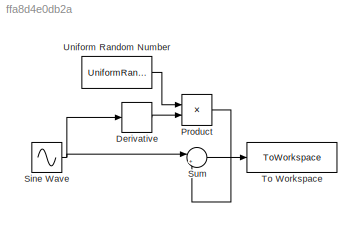
MODEL slx_ffa8d4e0db2a
KIND model
CONFIG AbsTol = auto
CONFIG EnableMultiTasking = off
CONFIG FixedStep = 1/1024
CONFIG MaxStep = auto
CONFIG MinStep = auto
CONFIG RelTol = 1e-3
CONFIG SampleTimeConstraint = Unconstrained
CONFIG SolverName = FixedStepAuto
CONFIG StartTime = 0.0
CONFIG StopTime = 1.0
BLOCK [Derivative] Derivative
BLOCK [Product] Product
BLOCK [Sin] Sine Wave
  Amplitude = amp
  Frequency = 2*f*pi
  SampleTime = 0
BLOCK [Sum] Sum
  Inputs = |++
BLOCK [ToWorkspace] To Workspace
  FixptAsFi = on
  MaxDataPoints = inf
  SampleTime = -1
  SaveFormat = Structure With Time
  VariableName = simout
BLOCK [UniformRandomNumber] Uniform Random Number
  Maximum = 0.1/1024
  Minimum = -0.1/1024
  SampleTime = 0
LINE Derivative:1 -> Product:2
LINE Product:1 -> Sum:2
NET Sine Wave:1 -> Derivative:1, Sum:1
LINE Sum:1 -> To Workspace:1
LINE Uniform Random Number:1 -> Product:1
note: NET lines group one-source signal fan-out (src -> all destinations, sorted); 1:1 wires keep LINE
